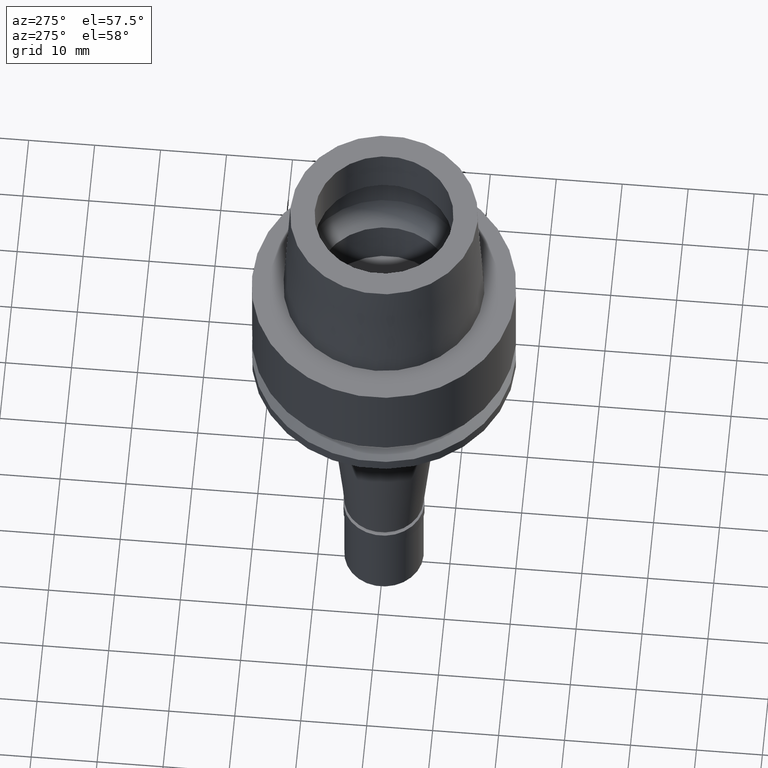
[diagram: clean part render]
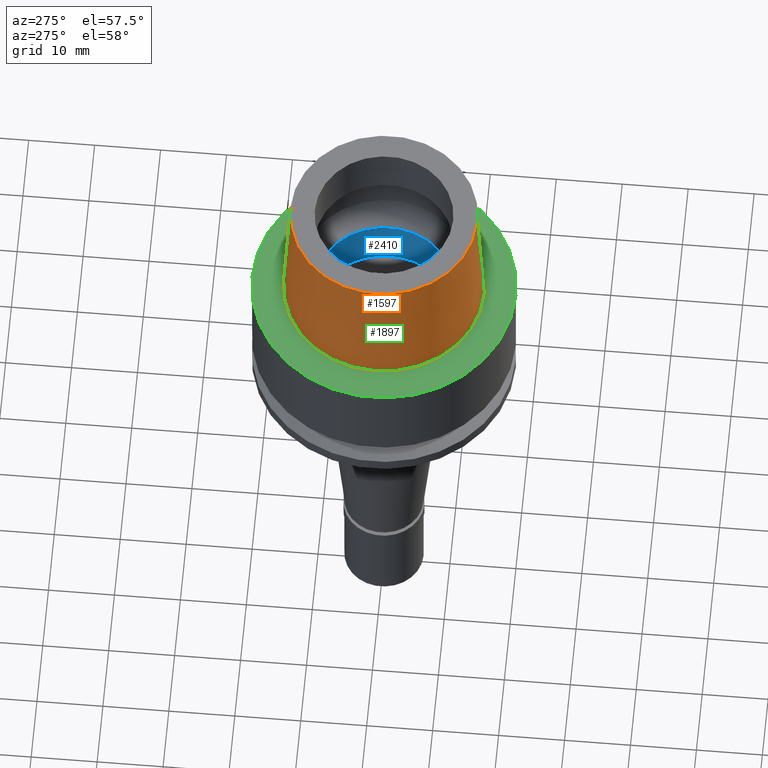
[diagram: same view with three faces highlighted in distinct colors, each labeled with its STEP entity id]
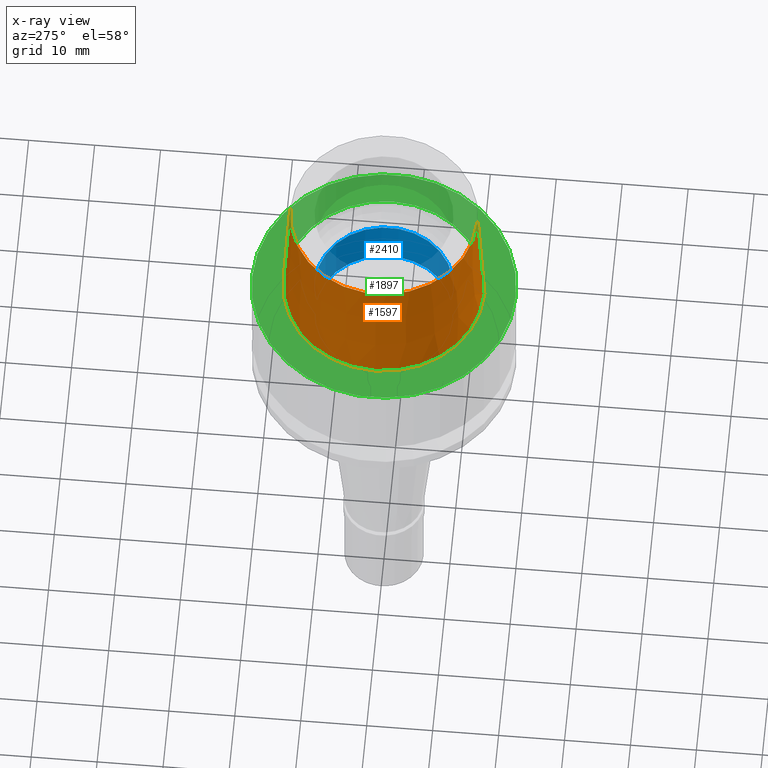
[diagram: x-ray of the same camera — body ghosted, the three highlighted faces saturated]
A machine part, auxiliary view with three faces highlighted in distinct colors.
The next image is the same camera in x-ray (body ghosted, the three faces saturated) — at least one of them is partly hidden behind the body in this view.
Their STEP definitions:

[orange] entity #1597 — the highlighted conical surface has half-angle 2.862 deg.
#147 = CIRCLE ( 'NONE', #1687, 15.19999963424000100 ) ;
#156 = VERTEX_POINT ( 'NONE', #336 ) ;
#160 = CARTESIAN_POINT ( 'NONE',  ( 0.0000000000000000000, 0.0000000000000000000, 20.00000000000000000 ) ) ;
#182 = VERTEX_POINT ( 'NONE', #1583 ) ;
#218 = LINE ( 'NONE', #891, #841 ) ;
#225 = CONICAL_SURFACE ( 'NONE', #2319, 14.70000054865000116, 0.04995830450907576964 ) ;
#303 = DIRECTION ( 'NONE',  ( 0.0000000000000000000, -1.000000000000000000, 0.0000000000000000000 ) ) ;
#336 = CARTESIAN_POINT ( 'NONE',  ( 0.0000000000000000000, -14.20000146305999955, 20.00000000000000000 ) ) ;
#760 = ORIENTED_EDGE ( 'NONE', *, *, #1411, .F. ) ;
#841 = VECTOR ( 'NONE', #2351, 999.9999999999998863 ) ;
#891 = CARTESIAN_POINT ( 'NONE',  ( 0.0000000000000000000, 14.20000146305999955, 20.00000000000000000 ) ) ;
#925 = DIRECTION ( 'NONE',  ( 0.0000000000000000000, 0.0000000000000000000, -1.000000000000000000 ) ) ;
#957 = FACE_OUTER_BOUND ( 'NONE', #2651, .T. ) ;
#1074 = ORIENTED_EDGE ( 'NONE', *, *, #1996, .T. ) ;
#1079 = EDGE_CURVE ( 'NONE', #156, #1630, #1639, .T. ) ;
#1103 = ORIENTED_EDGE ( 'NONE', *, *, #1079, .T. ) ;
#1112 = DIRECTION ( 'NONE',  ( 0.0000000000000000000, -0.04993752584496928548, -0.9987523434327867378 ) ) ;
#1146 = ORIENTED_EDGE ( 'NONE', *, *, #1176, .T. ) ;
#1176 = EDGE_CURVE ( 'NONE', #1630, #182, #218, .T. ) ;
#1329 = AXIS2_PLACEMENT_3D ( 'NONE', #160, #2496, #1483 ) ;
#1411 = EDGE_CURVE ( 'NONE', #156, #2181, #2140, .T. ) ;
#1483 = DIRECTION ( 'NONE',  ( 0.0000000000000000000, -1.000000000000000000, 0.0000000000000000000 ) ) ;
#1540 = DIRECTION ( 'NONE',  ( 0.0000000000000000000, 1.000000000000000000, 0.0000000000000000000 ) ) ;
#1568 = DIRECTION ( 'NONE',  ( 0.0000000000000000000, 0.0000000000000000000, 1.000000000000000000 ) ) ;
#1571 = CARTESIAN_POINT ( 'NONE',  ( 0.0000000000000000000, 14.20000146305999955, 20.00000000000000000 ) ) ;
#1583 = CARTESIAN_POINT ( 'NONE',  ( 0.0000000000000000000, 15.19999963424000100, 3.801403636316999971E-13 ) ) ;
#1597 = ADVANCED_FACE ( 'NONE', ( #957 ), #225, .T. ) ;
#1630 = VERTEX_POINT ( 'NONE', #1571 ) ;
#1639 = CIRCLE ( 'NONE', #1329, 14.20000146305999955 ) ;
#1687 = AXIS2_PLACEMENT_3D ( 'NONE', #2580, #1568, #1540 ) ;
#1996 = EDGE_CURVE ( 'NONE', #182, #2181, #147, .T. ) ;
#2070 = VECTOR ( 'NONE', #1112, 999.9999999999998863 ) ;
#2140 = LINE ( 'NONE', #2340, #2070 ) ;
#2181 = VERTEX_POINT ( 'NONE', #2430 ) ;
#2319 = AXIS2_PLACEMENT_3D ( 'NONE', #2640, #925, #303 ) ;
#2340 = CARTESIAN_POINT ( 'NONE',  ( 0.0000000000000000000, -14.20000146305999955, 20.00000000000000000 ) ) ;
#2351 = DIRECTION ( 'NONE',  ( 0.0000000000000000000, 0.04993752584496928548, -0.9987523434327867378 ) ) ;
#2430 = CARTESIAN_POINT ( 'NONE',  ( 0.0000000000000000000, -15.19999963424000100, 3.801403636316999971E-13 ) ) ;
#2496 = DIRECTION ( 'NONE',  ( 0.0000000000000000000, 0.0000000000000000000, -1.000000000000000000 ) ) ;
#2580 = CARTESIAN_POINT ( 'NONE',  ( 0.0000000000000000000, 0.0000000000000000000, 6.821210263297000155E-13 ) ) ;
#2640 = CARTESIAN_POINT ( 'NONE',  ( 0.0000000000000000000, 0.0000000000000000000, 10.00000000000000000 ) ) ;
#2651 = EDGE_LOOP ( 'NONE', ( #1074, #760, #1103, #1146 ) ) ;

[blue] entity #2410 — the highlighted cylindrical surface (partial cylindrical patch) has radius 10.5 mm, axis along (0, 0, 1).
#118 = CARTESIAN_POINT ( 'NONE',  ( 0.0000000000000000000, 10.50000000000000000, -7.950000000000000178 ) ) ;
#329 = CARTESIAN_POINT ( 'NONE',  ( 0.0000000000000000000, 0.0000000000000000000, 4.263256414560999963E-14 ) ) ;
#349 = CARTESIAN_POINT ( 'NONE',  ( 0.0000000000000000000, 10.50000000000000000, 4.263256414560999963E-14 ) ) ;
#509 = DIRECTION ( 'NONE',  ( 0.0000000000000000000, 1.000000000000000000, 0.0000000000000000000 ) ) ;
#519 = CARTESIAN_POINT ( 'NONE',  ( 0.0000000000000000000, -10.50000000000000000, 4.263256414560999963E-14 ) ) ;
#525 = CARTESIAN_POINT ( 'NONE',  ( 0.0000000000000000000, 0.0000000000000000000, -75.55000000000001137 ) ) ;
#529 = LINE ( 'NONE', #1976, #2577 ) ;
#598 = AXIS2_PLACEMENT_3D ( 'NONE', #525, #2562, #509 ) ;
#606 = ORIENTED_EDGE ( 'NONE', *, *, #1627, .T. ) ;
#612 = EDGE_CURVE ( 'NONE', #1211, #2155, #2510, .T. ) ;
#639 = AXIS2_PLACEMENT_3D ( 'NONE', #329, #1993, #1577 ) ;
#919 = CYLINDRICAL_SURFACE ( 'NONE', #598, 10.50000000000000000 ) ;
#1203 = ORIENTED_EDGE ( 'NONE', *, *, #2524, .T. ) ;
#1211 = VERTEX_POINT ( 'NONE', #1903 ) ;
#1216 = CARTESIAN_POINT ( 'NONE',  ( 0.0000000000000000000, -10.50000000000000000, -7.950000000000000178 ) ) ;
#1364 = DIRECTION ( 'NONE',  ( 0.0000000000000000000, 0.0000000000000000000, 1.000000000000000000 ) ) ;
#1525 = ORIENTED_EDGE ( 'NONE', *, *, #612, .T. ) ;
#1577 = DIRECTION ( 'NONE',  ( 0.0000000000000000000, -1.000000000000000000, 0.0000000000000000000 ) ) ;
#1627 = EDGE_CURVE ( 'NONE', #2155, #1677, #529, .T. ) ;
#1665 = EDGE_CURVE ( 'NONE', #1211, #1730, #2002, .T. ) ;
#1677 = VERTEX_POINT ( 'NONE', #519 ) ;
#1730 = VERTEX_POINT ( 'NONE', #349 ) ;
#1804 = DIRECTION ( 'NONE',  ( 0.0000000000000000000, 0.0000000000000000000, 1.000000000000000000 ) ) ;
#1829 = CIRCLE ( 'NONE', #639, 10.50000000000000000 ) ;
#1903 = CARTESIAN_POINT ( 'NONE',  ( 0.0000000000000000000, 10.50000000000000000, -7.950000000000000178 ) ) ;
#1976 = CARTESIAN_POINT ( 'NONE',  ( 0.0000000000000000000, -10.50000000000000000, -7.950000000000000178 ) ) ;
#1993 = DIRECTION ( 'NONE',  ( 0.0000000000000000000, 0.0000000000000000000, 1.000000000000000000 ) ) ;
#2002 = LINE ( 'NONE', #118, #2245 ) ;
#2155 = VERTEX_POINT ( 'NONE', #1216 ) ;
#2189 = FACE_OUTER_BOUND ( 'NONE', #2498, .T. ) ;
#2245 = VECTOR ( 'NONE', #1804, 1000.000000000000000 ) ;
#2336 = AXIS2_PLACEMENT_3D ( 'NONE', #2648, #2415, #2616 ) ;
#2342 = ORIENTED_EDGE ( 'NONE', *, *, #1665, .F. ) ;
#2410 = ADVANCED_FACE ( 'NONE', ( #2189 ), #919, .F. ) ;
#2415 = DIRECTION ( 'NONE',  ( 0.0000000000000000000, 0.0000000000000000000, -1.000000000000000000 ) ) ;
#2498 = EDGE_LOOP ( 'NONE', ( #1525, #606, #1203, #2342 ) ) ;
#2510 = CIRCLE ( 'NONE', #2336, 10.50000000000000000 ) ;
#2524 = EDGE_CURVE ( 'NONE', #1677, #1730, #1829, .T. ) ;
#2562 = DIRECTION ( 'NONE',  ( 0.0000000000000000000, 0.0000000000000000000, 1.000000000000000000 ) ) ;
#2577 = VECTOR ( 'NONE', #1364, 1000.000000000000000 ) ;
#2616 = DIRECTION ( 'NONE',  ( 0.0000000000000000000, 1.000000000000000000, 0.0000000000000000000 ) ) ;
#2648 = CARTESIAN_POINT ( 'NONE',  ( 0.0000000000000000000, 0.0000000000000000000, -7.950000000000000178 ) ) ;

[green] entity #1897 — the highlighted planar face has unit normal (0, 0, 1).
#101 = DIRECTION ( 'NONE',  ( 0.0000000000000000000, 0.0000000000000000000, 1.000000000000000000 ) ) ;
#139 = ORIENTED_EDGE ( 'NONE', *, *, #1996, .F. ) ;
#147 = CIRCLE ( 'NONE', #1687, 15.19999963424000100 ) ;
#182 = VERTEX_POINT ( 'NONE', #1583 ) ;
#201 = EDGE_LOOP ( 'NONE', ( #139, #2472 ) ) ;
#229 = AXIS2_PLACEMENT_3D ( 'NONE', #861, #448, #1297 ) ;
#311 = CARTESIAN_POINT ( 'NONE',  ( 0.0000000000000000000, 0.0000000000000000000, 1.705302565823999875E-13 ) ) ;
#361 = CIRCLE ( 'NONE', #229, 20.00000000000000000 ) ;
#429 = CARTESIAN_POINT ( 'NONE',  ( 0.0000000000000000000, 0.0000000000000000000, 0.0000000000000000000 ) ) ;
#439 = DIRECTION ( 'NONE',  ( 1.000000000000000000, 0.0000000000000000000, 0.0000000000000000000 ) ) ;
#448 = DIRECTION ( 'NONE',  ( 0.0000000000000000000, 0.0000000000000000000, -1.000000000000000000 ) ) ;
#619 = CARTESIAN_POINT ( 'NONE',  ( 0.0000000000000000000, 20.00000000000000000, 1.705302565823999875E-13 ) ) ;
#861 = CARTESIAN_POINT ( 'NONE',  ( 0.0000000000000000000, 0.0000000000000000000, 1.705302565823999875E-13 ) ) ;
#913 = VERTEX_POINT ( 'NONE', #1693 ) ;
#1051 = DIRECTION ( 'NONE',  ( 0.0000000000000000000, 0.0000000000000000000, 1.000000000000000000 ) ) ;
#1086 = FACE_BOUND ( 'NONE', #201, .T. ) ;
#1297 = DIRECTION ( 'NONE',  ( 0.0000000000000000000, 1.000000000000000000, 0.0000000000000000000 ) ) ;
#1315 = CARTESIAN_POINT ( 'NONE',  ( 0.0000000000000000000, 0.0000000000000000000, 6.821210263297000155E-13 ) ) ;
#1371 = DIRECTION ( 'NONE',  ( 0.0000000000000000000, 0.0000000000000000000, -1.000000000000000000 ) ) ;
#1428 = CIRCLE ( 'NONE', #2031, 20.00000000000000000 ) ;
#1468 = AXIS2_PLACEMENT_3D ( 'NONE', #1315, #101, #1582 ) ;
#1540 = DIRECTION ( 'NONE',  ( 0.0000000000000000000, 1.000000000000000000, 0.0000000000000000000 ) ) ;
#1568 = DIRECTION ( 'NONE',  ( 0.0000000000000000000, 0.0000000000000000000, 1.000000000000000000 ) ) ;
#1582 = DIRECTION ( 'NONE',  ( 0.0000000000000000000, -1.000000000000000000, 0.0000000000000000000 ) ) ;
#1583 = CARTESIAN_POINT ( 'NONE',  ( 0.0000000000000000000, 15.19999963424000100, 3.801403636316999971E-13 ) ) ;
#1667 = FACE_OUTER_BOUND ( 'NONE', #2064, .T. ) ;
#1673 = ORIENTED_EDGE ( 'NONE', *, *, #2385, .F. ) ;
#1687 = AXIS2_PLACEMENT_3D ( 'NONE', #2580, #1568, #1540 ) ;
#1693 = CARTESIAN_POINT ( 'NONE',  ( 0.0000000000000000000, -20.00000000000000000, 1.705302565823999875E-13 ) ) ;
#1897 = ADVANCED_FACE ( 'NONE', ( #1667, #1086 ), #2499, .T. ) ;
#1966 = EDGE_CURVE ( 'NONE', #2181, #182, #2493, .T. ) ;
#1996 = EDGE_CURVE ( 'NONE', #182, #2181, #147, .T. ) ;
#2031 = AXIS2_PLACEMENT_3D ( 'NONE', #311, #1371, #2416 ) ;
#2064 = EDGE_LOOP ( 'NONE', ( #1673, #2303 ) ) ;
#2181 = VERTEX_POINT ( 'NONE', #2430 ) ;
#2276 = VERTEX_POINT ( 'NONE', #619 ) ;
#2303 = ORIENTED_EDGE ( 'NONE', *, *, #2398, .F. ) ;
#2385 = EDGE_CURVE ( 'NONE', #2276, #913, #361, .T. ) ;
#2398 = EDGE_CURVE ( 'NONE', #913, #2276, #1428, .T. ) ;
#2416 = DIRECTION ( 'NONE',  ( 0.0000000000000000000, -1.000000000000000000, 0.0000000000000000000 ) ) ;
#2430 = CARTESIAN_POINT ( 'NONE',  ( 0.0000000000000000000, -15.19999963424000100, 3.801403636316999971E-13 ) ) ;
#2472 = ORIENTED_EDGE ( 'NONE', *, *, #1966, .F. ) ;
#2493 = CIRCLE ( 'NONE', #1468, 15.19999963424000100 ) ;
#2499 = PLANE ( 'NONE',  #2582 ) ;
#2580 = CARTESIAN_POINT ( 'NONE',  ( 0.0000000000000000000, 0.0000000000000000000, 6.821210263297000155E-13 ) ) ;
#2582 = AXIS2_PLACEMENT_3D ( 'NONE', #429, #1051, #439 ) ;